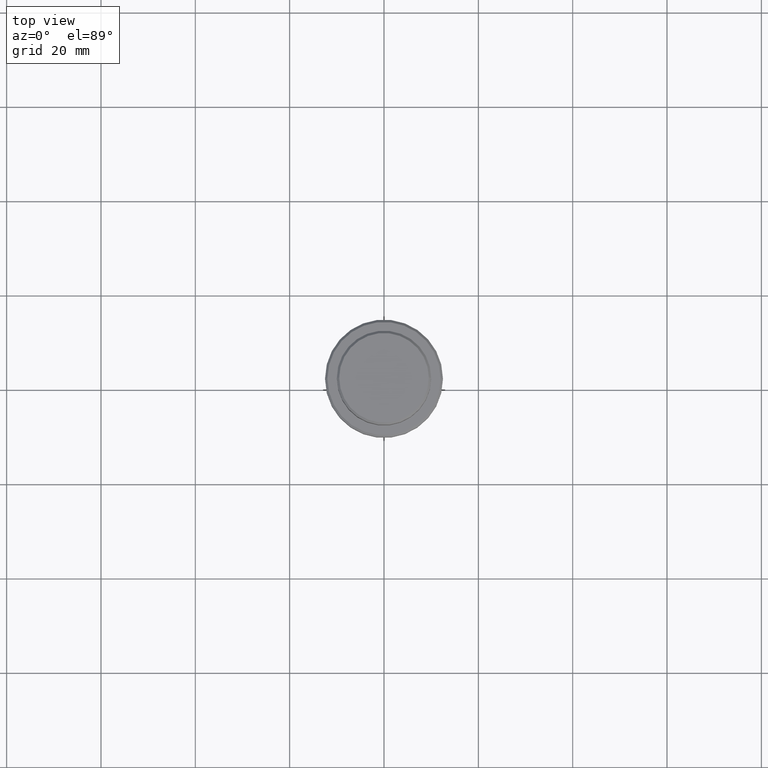
[diagram: clean part render]
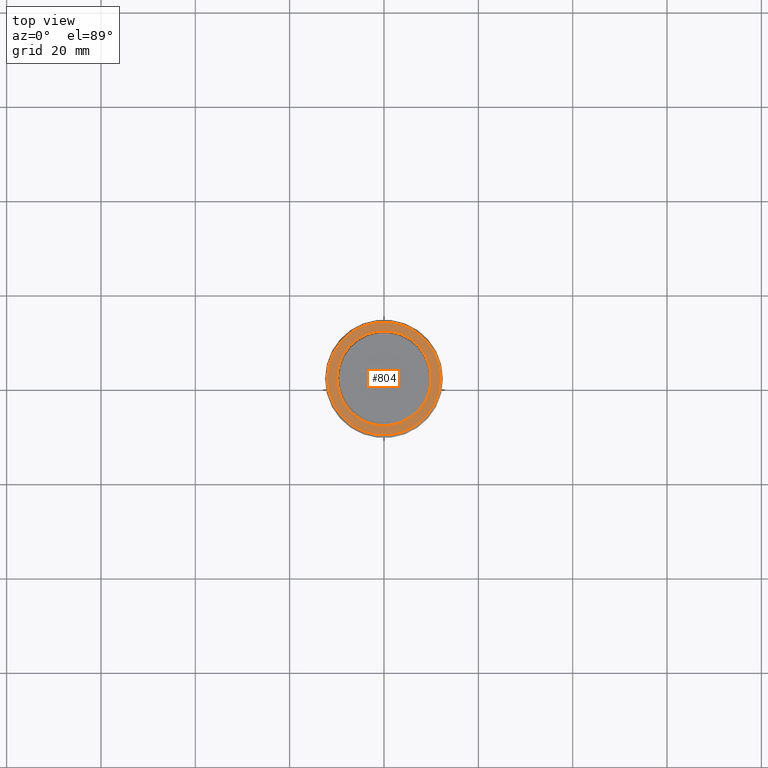
[diagram: same view with one face highlighted and labeled with its STEP entity id]
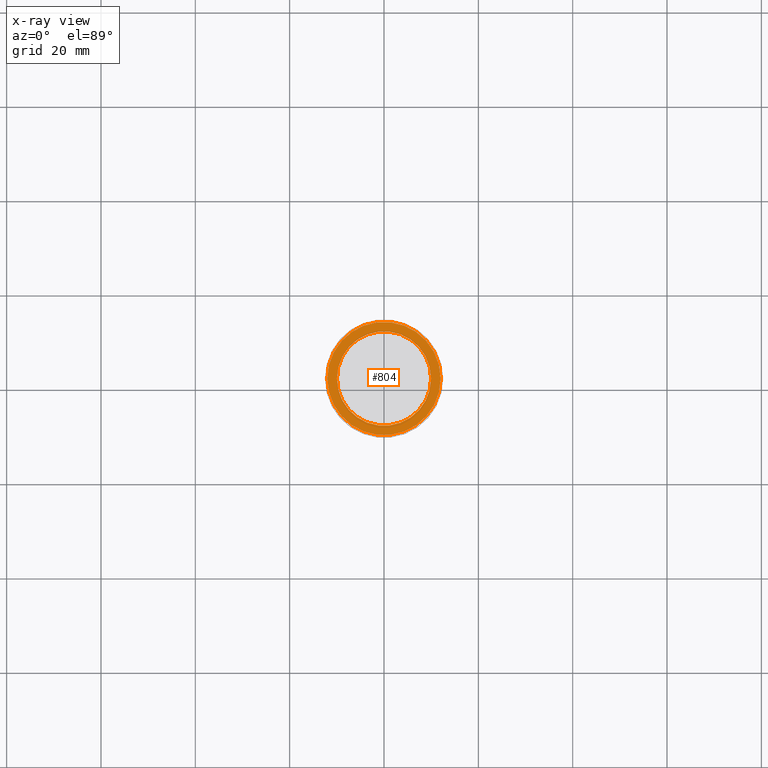
[diagram: x-ray of the same camera — body ghosted, the highlighted face saturated]
A machine part, top view. The second image highlights one B-rep face of the part: STEP entity #804.
The next image is the same camera in x-ray: the body ghosted, the highlighted face saturated — about 0% of this face is hidden behind the body in this view.
In plain terms, the highlighted planar face has unit normal (0, -0, 1).
Its self-contained STEP definition (entity closure, byte-faithful):
#73 = CARTESIAN_POINT ( 'NONE',  ( -9.999999999999994671, 1.224646799147352665E-15, -9.000000000000001776 ) ) ;
#106 = FACE_BOUND ( 'NONE', #604, .T. ) ;
#126 = EDGE_LOOP ( 'NONE', ( #618, #208 ) ) ;
#130 = DIRECTION ( 'NONE',  ( 1.000000000000000000, 0.000000000000000000, 0.000000000000000000 ) ) ;
#179 = CIRCLE ( 'NONE', #1186, 12.00000000000002487 ) ;
#181 = CARTESIAN_POINT ( 'NONE',  ( 9.999999999999994671, 0.000000000000000000, -9.000000000000001776 ) ) ;
#204 = VERTEX_POINT ( 'NONE', #73 ) ;
#208 = ORIENTED_EDGE ( 'NONE', *, *, #350, .T. ) ;
#247 = VERTEX_POINT ( 'NONE', #339 ) ;
#258 = DIRECTION ( 'NONE',  ( -0.000000000000000000, -0.000000000000000000, 1.000000000000000000 ) ) ;
#261 = AXIS2_PLACEMENT_3D ( 'NONE', #853, #563, #872 ) ;
#339 = CARTESIAN_POINT ( 'NONE',  ( -12.00000000000002487, 0.000000000000000000, -9.000000000000001776 ) ) ;
#347 = CARTESIAN_POINT ( 'NONE',  ( 0.000000000000000000, 0.000000000000000000, -9.000000000000001776 ) ) ;
#350 = EDGE_CURVE ( 'NONE', #461, #247, #179, .T. ) ;
#387 = EDGE_CURVE ( 'NONE', #247, #461, #1345, .T. ) ;
#411 = CARTESIAN_POINT ( 'NONE',  ( 12.00000000000002487, 1.500192328955509115E-15, -9.000000000000001776 ) ) ;
#461 = VERTEX_POINT ( 'NONE', #411 ) ;
#466 = CARTESIAN_POINT ( 'NONE',  ( 0.000000000000000000, 9.499999999999994671, -9.000000000000001776 ) ) ;
#563 = DIRECTION ( 'NONE',  ( 0.000000000000000000, 0.000000000000000000, -1.000000000000000000 ) ) ;
#576 = PLANE ( 'NONE',  #856 ) ;
#577 = VERTEX_POINT ( 'NONE', #181 ) ;
#604 = EDGE_LOOP ( 'NONE', ( #916, #1110 ) ) ;
#618 = ORIENTED_EDGE ( 'NONE', *, *, #387, .T. ) ;
#641 = EDGE_CURVE ( 'NONE', #204, #577, #713, .T. ) ;
#691 = DIRECTION ( 'NONE',  ( 1.000000000000000000, 0.000000000000000000, 0.000000000000000000 ) ) ;
#692 = CIRCLE ( 'NONE', #880, 9.999999999999994671 ) ;
#699 = DIRECTION ( 'NONE',  ( 0.000000000000000000, 0.000000000000000000, -1.000000000000000000 ) ) ;
#710 = FACE_OUTER_BOUND ( 'NONE', #126, .T. ) ;
#713 = CIRCLE ( 'NONE', #261, 9.999999999999994671 ) ;
#721 = EDGE_CURVE ( 'NONE', #577, #204, #692, .T. ) ;
#745 = DIRECTION ( 'NONE',  ( 1.000000000000000000, 0.000000000000000000, 0.000000000000000000 ) ) ;
#804 = ADVANCED_FACE ( 'NONE', ( #710, #106 ), #576, .T. ) ;
#853 = CARTESIAN_POINT ( 'NONE',  ( 0.000000000000000000, 0.000000000000000000, -9.000000000000001776 ) ) ;
#856 = AXIS2_PLACEMENT_3D ( 'NONE', #466, #1004, #691 ) ;
#872 = DIRECTION ( 'NONE',  ( 1.000000000000000000, 0.000000000000000000, 0.000000000000000000 ) ) ;
#880 = AXIS2_PLACEMENT_3D ( 'NONE', #347, #699, #130 ) ;
#897 = DIRECTION ( 'NONE',  ( 1.000000000000000000, 0.000000000000000000, 0.000000000000000000 ) ) ;
#907 = DIRECTION ( 'NONE',  ( -0.000000000000000000, -0.000000000000000000, 1.000000000000000000 ) ) ;
#916 = ORIENTED_EDGE ( 'NONE', *, *, #721, .T. ) ;
#1004 = DIRECTION ( 'NONE',  ( 0.000000000000000000, -0.000000000000000000, 1.000000000000000000 ) ) ;
#1014 = CARTESIAN_POINT ( 'NONE',  ( 0.000000000000000000, 0.000000000000000000, -9.000000000000001776 ) ) ;
#1110 = ORIENTED_EDGE ( 'NONE', *, *, #641, .T. ) ;
#1186 = AXIS2_PLACEMENT_3D ( 'NONE', #1014, #907, #897 ) ;
#1234 = CARTESIAN_POINT ( 'NONE',  ( 0.000000000000000000, 0.000000000000000000, -9.000000000000001776 ) ) ;
#1323 = AXIS2_PLACEMENT_3D ( 'NONE', #1234, #258, #745 ) ;
#1345 = CIRCLE ( 'NONE', #1323, 12.00000000000002487 ) ;